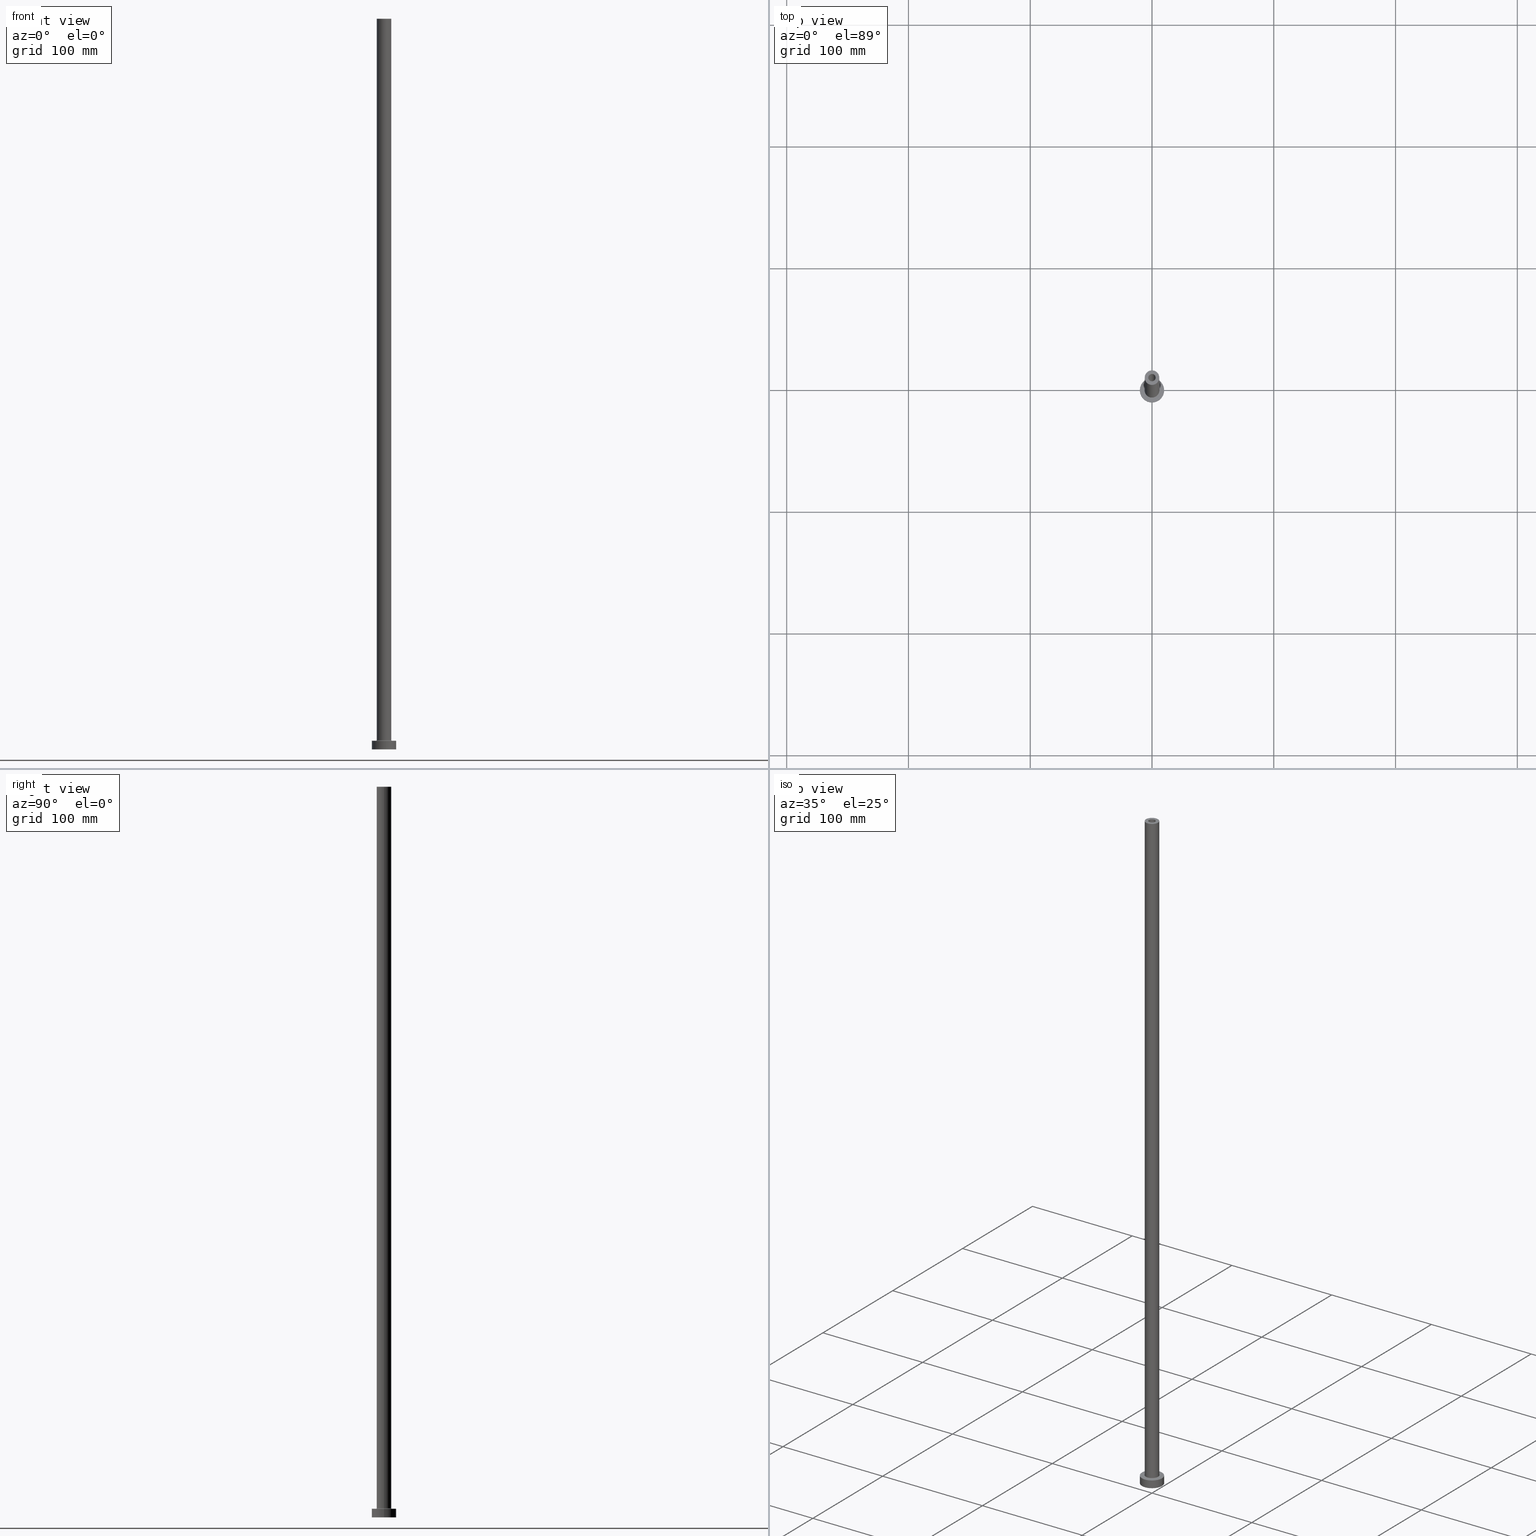
[diagram: canonical four-view strip — front | top / right | iso, engineering-drawing reading convention]
A machine part, canonical four-view strip (front | top / right | iso — engineering-drawing reading convention). The complete STEP part file that produces these views, byte-faithful:
ISO-10303-21;
HEADER;
FILE_DESCRIPTION (( 'STEP AP203' ),
    '1' );
FILE_NAME ('a6e2.STEP',
    '2023-02-13T14:59:31',
    ( '' ),
    ( '' ),
    'SwSTEP 2.0',
    'SolidWorks 2019',
    '' );
FILE_SCHEMA (( 'CONFIG_CONTROL_DESIGN' ));
ENDSEC;

DATA;
#1 = CARTESIAN_POINT ( 'NONE',  ( 0.000000000000000000, 0.000000000000000000, 7.499999999999951150 ) ) ;
#2 = VERTEX_POINT ( 'NONE', #265 ) ;
#3 = FACE_OUTER_BOUND ( 'NONE', #276, .T. ) ;
#4 = ORIENTED_EDGE ( 'NONE', *, *, #170, .F. ) ;
#5 = DIRECTION ( 'NONE',  ( 0.000000000000000000, 0.000000000000000000, -1.000000000000000000 ) ) ;
#6 = AXIS2_PLACEMENT_3D ( 'NONE', #227, #96, #133 ) ;
#7 = EDGE_CURVE ( 'NONE', #225, #189, #175, .T. ) ;
#8 = ORIENTED_EDGE ( 'NONE', *, *, #383, .T. ) ;
#9 = DIRECTION ( 'NONE',  ( -0.000000000000000000, -0.000000000000000000, -1.000000000000000000 ) ) ;
#10 = ORIENTED_EDGE ( 'NONE', *, *, #43, .T. ) ;
#11 = CALENDAR_DATE ( 2023, 13, 2 ) ;
#12 = DIRECTION ( 'NONE',  ( -0.000000000000000000, -0.000000000000000000, -1.000000000000000000 ) ) ;
#13 = DATE_AND_TIME ( #94, #330 ) ;
#14 = ORIENTED_EDGE ( 'NONE', *, *, #305, .T. ) ;
#15 = LOCAL_TIME ( 15, 59, 31.00000000000000000, #198 ) ;
#16 = EDGE_CURVE ( 'NONE', #389, #113, #150, .T. ) ;
#17 = DATE_AND_TIME ( #340, #321 ) ;
#18 = CARTESIAN_POINT ( 'NONE',  ( 0.000000000000000000, 0.000000000000000000, 600.0000000000000000 ) ) ;
#19 = PERSON_AND_ORGANIZATION_ROLE ( 'creator' ) ;
#20 = CARTESIAN_POINT ( 'NONE',  ( 3.000000000000000444, 3.673940397442060361E-16, 600.0000000000000000 ) ) ;
#21 = APPROVAL_ROLE ( '' ) ;
#22 = CARTESIAN_POINT ( 'NONE',  ( 10.00000000000000000, 1.224646799147353256E-15, 7.000000000000000000 ) ) ;
#23 = ADVANCED_FACE ( 'NONE', ( #157 ), #131, .T. ) ;
#24 = TOROIDAL_SURFACE ( 'NONE', #280, 6.500000000000000888, 0.5000000000000000000 ) ;
#25 = AXIS2_PLACEMENT_3D ( 'NONE', #388, #72, #180 ) ;
#26 = CARTESIAN_POINT ( 'NONE',  ( 0.000000000000000000, 0.000000000000000000, 600.0000000000000000 ) ) ;
#27 = CARTESIAN_POINT ( 'NONE',  ( -6.500000000000000888, 7.960204194457796463E-16, 6.999999999999975131 ) ) ;
#28 = APPROVAL ( #83, 'NEUR�EN�' ) ;
#29 = DIRECTION ( 'NONE',  ( 1.000000000000000000, 0.000000000000000000, 0.000000000000000000 ) ) ;
#30 = CIRCLE ( 'NONE', #289, 10.00000000000000000 ) ;
#31 = APPROVAL_PERSON_ORGANIZATION ( #374, #394, #306 ) ;
#32 = CC_DESIGN_APPROVAL ( #407, ( #275 ) ) ;
#33 = FACE_OUTER_BOUND ( 'NONE', #430, .T. ) ;
#34 = PLANE ( 'NONE',  #314 ) ;
#35 = EDGE_CURVE ( 'NONE', #82, #389, #373, .T. ) ;
#36 = CYLINDRICAL_SURFACE ( 'NONE', #358, 10.00000000000000000 ) ;
#37 = AXIS2_PLACEMENT_3D ( 'NONE', #122, #435, #431 ) ;
#38 = CARTESIAN_POINT ( 'NONE',  ( -3.150000000000000355, 0.000000000000000000, 563.9095454429503889 ) ) ;
#39 = AXIS2_PLACEMENT_3D ( 'NONE', #401, #261, #52 ) ;
#40 = EDGE_LOOP ( 'NONE', ( #190, #399 ) ) ;
#41 = PLANE ( 'NONE',  #39 ) ;
#42 = EDGE_LOOP ( 'NONE', ( #14, #145 ) ) ;
#43 = EDGE_CURVE ( 'NONE', #360, #113, #404, .T. ) ;
#44 = CARTESIAN_POINT ( 'NONE',  ( 0.000000000000000000, 0.000000000000000000, 554.9999999999998863 ) ) ;
#45 = ORIENTED_EDGE ( 'NONE', *, *, #301, .T. ) ;
#46 = DIRECTION ( 'NONE',  ( 0.000000000000000000, 0.000000000000000000, 1.000000000000000000 ) ) ;
#47 = VECTOR ( 'NONE', #137, 1000.000000000000000 ) ;
#48 = ORIENTED_EDGE ( 'NONE', *, *, #43, .F. ) ;
#49 = AXIS2_PLACEMENT_3D ( 'NONE', #398, #322, #187 ) ;
#50 = CARTESIAN_POINT ( 'NONE',  ( 0.000000000000000000, 0.000000000000000000, 0.000000000000000000 ) ) ;
#51 = ORIENTED_EDGE ( 'NONE', *, *, #7, .F. ) ;
#52 = DIRECTION ( 'NONE',  ( 1.000000000000000000, 0.000000000000000000, -0.000000000000000000 ) ) ;
#53 = PLANE ( 'NONE',  #231 ) ;
#54 = EDGE_CURVE ( 'NONE', #189, #225, #143, .T. ) ;
#55 = PERSON_AND_ORGANIZATION_ROLE ( 'design_owner' ) ;
#56 = ORIENTED_EDGE ( 'NONE', *, *, #376, .T. ) ;
#57 = AXIS2_PLACEMENT_3D ( 'NONE', #232, #299, #263 ) ;
#58 = CALENDAR_DATE ( 2023, 13, 2 ) ;
#59 = DIRECTION ( 'NONE',  ( 1.000000000000000000, 0.000000000000000000, 0.000000000000000000 ) ) ;
#60 = CC_DESIGN_PERSON_AND_ORGANIZATION_ASSIGNMENT ( #130, #411, ( #290 ) ) ;
#61 = ORIENTED_EDGE ( 'NONE', *, *, #93, .F. ) ;
#62 = DIRECTION ( 'NONE',  ( 1.000000000000000000, 0.000000000000000000, 0.000000000000000000 ) ) ;
#63 = AXIS2_PLACEMENT_3D ( 'NONE', #101, #176, #350 ) ;
#64 = AXIS2_PLACEMENT_3D ( 'NONE', #256, #151, #220 ) ;
#65 = CYLINDRICAL_SURFACE ( 'NONE', #453, 3.000000000000000444 ) ;
#66 = CARTESIAN_POINT ( 'NONE',  ( 0.000000000000000000, 0.000000000000000000, 0.000000000000000000 ) ) ;
#67 = DIRECTION ( 'NONE',  ( -1.000000000000000000, 0.000000000000000000, 0.000000000000000000 ) ) ;
#68 = CIRCLE ( 'NONE', #25, 10.00000000000000000 ) ;
#69 = DIRECTION ( 'NONE',  ( 0.000000000000000000, 0.000000000000000000, -1.000000000000000000 ) ) ;
#70 = CC_DESIGN_DATE_AND_TIME_ASSIGNMENT ( #13, #234, ( #290 ) ) ;
#71 = CARTESIAN_POINT ( 'NONE',  ( 0.000000000000000000, 0.000000000000000000, 600.0000000000000000 ) ) ;
#72 = DIRECTION ( 'NONE',  ( 0.000000000000000000, 0.000000000000000000, 1.000000000000000000 ) ) ;
#73 = ORIENTED_EDGE ( 'NONE', *, *, #7, .T. ) ;
#74 = AXIS2_PLACEMENT_3D ( 'NONE', #457, #241, #209 ) ;
#75 = CARTESIAN_POINT ( 'NONE',  ( -3.150000000000000355, 0.000000000000000000, 0.000000000000000000 ) ) ;
#76 = LOCAL_TIME ( 15, 59, 31.00000000000000000, #124 ) ;
#77 = ORIENTED_EDGE ( 'NONE', *, *, #170, .T. ) ;
#78 = EDGE_CURVE ( 'NONE', #113, #389, #30, .T. ) ;
#79 = DIRECTION ( 'NONE',  ( 0.000000000000000000, 0.000000000000000000, 1.000000000000000000 ) ) ;
#80 = ORIENTED_EDGE ( 'NONE', *, *, #349, .F. ) ;
#81 = LINE ( 'NONE', #38, #224 ) ;
#82 = VERTEX_POINT ( 'NONE', #334 ) ;
#83 = APPROVAL_STATUS ( 'not_yet_approved' ) ;
#84 = CLOSED_SHELL ( 'NONE', ( #193, #188, #217, #112, #272, #87, #102, #97, #23, #461, #233, #115, #136, #105 ) ) ;
#85 = VERTEX_POINT ( 'NONE', #20 ) ;
#86 = DATE_AND_TIME ( #58, #76 ) ;
#87 = ADVANCED_FACE ( 'NONE', ( #375 ), #297, .T. ) ;
#88 = EDGE_LOOP ( 'NONE', ( #362, #295, #92, #4 ) ) ;
#89 = DATE_TIME_ROLE ( 'creation_date' ) ;
#90 = VERTEX_POINT ( 'NONE', #442 ) ;
#91 =( NAMED_UNIT ( * ) PLANE_ANGLE_UNIT ( ) SI_UNIT ( $, .RADIAN. ) );
#92 = ORIENTED_EDGE ( 'NONE', *, *, #428, .F. ) ;
#93 = EDGE_CURVE ( 'NONE', #2, #189, #274, .T. ) ;
#94 = CALENDAR_DATE ( 2023, 13, 2 ) ;
#95 = ORIENTED_EDGE ( 'NONE', *, *, #428, .T. ) ;
#96 = DIRECTION ( 'NONE',  ( 1.224646799147353207E-16, 1.000000000000000000, -0.000000000000000000 ) ) ;
#97 = ADVANCED_FACE ( 'NONE', ( #236, #268 ), #127, .F. ) ;
#98 = DIRECTION ( 'NONE',  ( 0.000000000000000000, 0.000000000000000000, 1.000000000000000000 ) ) ;
#99 = CIRCLE ( 'NONE', #214, 10.00000000000000000 ) ;
#100 = AXIS2_PLACEMENT_3D ( 'NONE', #211, #437, #254 ) ;
#101 = CARTESIAN_POINT ( 'NONE',  ( 6.500000000000000888, 0.000000000000000000, 7.499999999999951150 ) ) ;
#102 = ADVANCED_FACE ( 'NONE', ( #308, #449 ), #53, .T. ) ;
#103 = ORIENTED_EDGE ( 'NONE', *, *, #172, .F. ) ;
#104 = DIRECTION ( 'NONE',  ( 0.000000000000000000, 0.000000000000000000, -1.000000000000000000 ) ) ;
#105 = ADVANCED_FACE ( 'NONE', ( #237 ), #142, .F. ) ;
#106 = DIRECTION ( 'NONE',  ( 1.000000000000000000, 0.000000000000000000, -0.000000000000000000 ) ) ;
#107 = AXIS2_PLACEMENT_3D ( 'NONE', #201, #455, #171 ) ;
#108 = ORGANIZATION ( 'NEUR�EN�', 'NEUR�EN�', '' ) ;
#109 = CARTESIAN_POINT ( 'NONE',  ( 0.000000000000000000, 0.000000000000000000, 563.9095454429503889 ) ) ;
#110 = PRODUCT_DEFINITION_SHAPE ( 'NONE', 'NONE',  #380 ) ;
#111 = DIRECTION ( 'NONE',  ( 1.000000000000000000, 0.000000000000000000, 0.000000000000000000 ) ) ;
#112 = ADVANCED_FACE ( 'NONE', ( #239 ), #348, .T. ) ;
#113 = VERTEX_POINT ( 'NONE', #381 ) ;
#114 = CARTESIAN_POINT ( 'NONE',  ( 6.000000000000000888, 7.347880794884120722E-16, 7.499999999999951150 ) ) ;
#115 = ADVANCED_FACE ( 'NONE', ( #450 ), #277, .F. ) ;
#116 = ORIENTED_EDGE ( 'NONE', *, *, #305, .F. ) ;
#117 = VECTOR ( 'NONE', #104, 1000.000000000000000 ) ;
#118 = CARTESIAN_POINT ( 'NONE',  ( 6.500000000000000888, 0.000000000000000000, 6.999999999999975131 ) ) ;
#119 = ORIENTED_EDGE ( 'NONE', *, *, #172, .T. ) ;
#120 = CARTESIAN_POINT ( 'NONE',  ( 0.000000000000000000, 0.000000000000000000, 554.9999999999998863 ) ) ;
#121 = EDGE_LOOP ( 'NONE', ( #216, #125, #185, #155 ) ) ;
#122 = CARTESIAN_POINT ( 'NONE',  ( 0.000000000000000000, 0.000000000000000000, 7.499999999999951150 ) ) ;
#123 = ORIENTED_EDGE ( 'NONE', *, *, #16, .T. ) ;
#124 = COORDINATED_UNIVERSAL_TIME_OFFSET ( 1, 0, .AHEAD. ) ;
#125 = ORIENTED_EDGE ( 'NONE', *, *, #349, .T. ) ;
#126 = PERSON_AND_ORGANIZATION_ROLE ( 'creator' ) ;
#127 = PLANE ( 'NONE',  #238 ) ;
#128 = VERTEX_POINT ( 'NONE', #313 ) ;
#129 = EDGE_CURVE ( 'NONE', #364, #255, #458, .T. ) ;
#130 = PERSON_AND_ORGANIZATION ( #153, #108 ) ;
#131 = CYLINDRICAL_SURFACE ( 'NONE', #179, 6.000000000000000888 ) ;
#132 = CIRCLE ( 'NONE', #386, 3.000000000000000444 ) ;
#133 = DIRECTION ( 'NONE',  ( -1.000000000000000000, 1.224646799147351482E-16, 0.000000000000000000 ) ) ;
#134 = DIRECTION ( 'NONE',  ( -0.000000000000000000, -0.000000000000000000, -1.000000000000000000 ) ) ;
#135 = CALENDAR_DATE ( 2023, 13, 2 ) ;
#136 = ADVANCED_FACE ( 'NONE', ( #206, #33 ), #34, .F. ) ;
#137 = DIRECTION ( 'NONE',  ( -0.000000000000000000, -0.000000000000000000, -1.000000000000000000 ) ) ;
#138 = AXIS2_PLACEMENT_3D ( 'NONE', #109, #315, #177 ) ;
#139 = DIRECTION ( 'NONE',  ( -1.000000000000000000, 0.000000000000000000, 0.000000000000000000 ) ) ;
#140 = DIRECTION ( 'NONE',  ( 1.000000000000000000, 0.000000000000000000, 0.000000000000000000 ) ) ;
#141 = EDGE_CURVE ( 'NONE', #357, #240, #410, .T. ) ;
#142 = CYLINDRICAL_SURFACE ( 'NONE', #107, 3.000000000000000444 ) ;
#143 = CIRCLE ( 'NONE', #243, 6.500000000000000888 ) ;
#144 = DIRECTION ( 'NONE',  ( 1.000000000000000000, 0.000000000000000000, 0.000000000000000000 ) ) ;
#145 = ORIENTED_EDGE ( 'NONE', *, *, #422, .T. ) ;
#146 = FACE_BOUND ( 'NONE', #332, .T. ) ;
#147 = EDGE_LOOP ( 'NONE', ( #438, #45, #229, #221 ) ) ;
#148 = DIRECTION ( 'NONE',  ( 0.000000000000000000, 0.000000000000000000, 1.000000000000000000 ) ) ;
#149 = VERTEX_POINT ( 'NONE', #203 ) ;
#150 = CIRCLE ( 'NONE', #57, 10.00000000000000000 ) ;
#151 = DIRECTION ( 'NONE',  ( 0.000000000000000000, 0.000000000000000000, 1.000000000000000000 ) ) ;
#152 = ORIENTED_EDGE ( 'NONE', *, *, #245, .F. ) ;
#153 = PERSON ( 'NEUR�EN�', 'NEUR�EN�', 'NEUR�EN�', ('NEUR�EN�'), ('NEUR�EN�'), ('NEUR�EN�') ) ;
#154 = LINE ( 'NONE', #327, #434 ) ;
#155 = ORIENTED_EDGE ( 'NONE', *, *, #141, .T. ) ;
#156 = CC_DESIGN_PERSON_AND_ORGANIZATION_ASSIGNMENT ( #226, #191, ( #275 ) ) ;
#157 = FACE_OUTER_BOUND ( 'NONE', #235, .T. ) ;
#158 = EDGE_CURVE ( 'NONE', #218, #225, #298, .T. ) ;
#159 = VECTOR ( 'NONE', #390, 1000.000000000000000 ) ;
#160 = DIRECTION ( 'NONE',  ( -1.000000000000000000, 0.000000000000000000, 0.000000000000000000 ) ) ;
#161 = PERSON_AND_ORGANIZATION ( #153, #108 ) ;
#162 = EDGE_CURVE ( 'NONE', #149, #85, #258, .T. ) ;
#163 = CARTESIAN_POINT ( 'NONE',  ( 0.000000000000000000, 0.000000000000000000, 7.000000000000000000 ) ) ;
#164 = MECHANICAL_CONTEXT ( 'NONE', #293, 'mechanical' ) ;
#165 = ORIENTED_EDGE ( 'NONE', *, *, #205, .T. ) ;
#166 = APPROVAL_STATUS ( 'not_yet_approved' ) ;
#167 = DIRECTION ( 'NONE',  ( 1.000000000000000000, 0.000000000000000000, -0.000000000000000000 ) ) ;
#168 = AXIS2_PLACEMENT_3D ( 'NONE', #66, #134, #140 ) ;
#169 = LOCAL_TIME ( 15, 59, 31.00000000000000000, #269 ) ;
#170 = EDGE_CURVE ( 'NONE', #149, #128, #416, .T. ) ;
#171 = DIRECTION ( 'NONE',  ( -1.000000000000000000, 0.000000000000000000, 0.000000000000000000 ) ) ;
#172 = EDGE_CURVE ( 'NONE', #85, #149, #338, .T. ) ;
#173 = CARTESIAN_POINT ( 'NONE',  ( 0.000000000000000000, 0.000000000000000000, 600.0000000000000000 ) ) ;
#174 = ORIENTED_EDGE ( 'NONE', *, *, #158, .T. ) ;
#175 = CIRCLE ( 'NONE', #345, 6.500000000000000888 ) ;
#176 = DIRECTION ( 'NONE',  ( 0.000000000000000000, -1.000000000000000000, 0.000000000000000000 ) ) ;
#177 = DIRECTION ( 'NONE',  ( -1.000000000000000000, 0.000000000000000000, 0.000000000000000000 ) ) ;
#178 = CARTESIAN_POINT ( 'NONE',  ( 0.000000000000000000, 0.000000000000000000, 7.000000000000000000 ) ) ;
#179 = AXIS2_PLACEMENT_3D ( 'NONE', #18, #341, #199 ) ;
#180 = DIRECTION ( 'NONE',  ( 1.000000000000000000, 0.000000000000000000, 0.000000000000000000 ) ) ;
#181 = ORIENTED_EDGE ( 'NONE', *, *, #205, .F. ) ;
#182 = DIRECTION ( 'NONE',  ( 0.000000000000000000, 0.000000000000000000, 1.000000000000000000 ) ) ;
#183 = ORIENTED_EDGE ( 'NONE', *, *, #129, .T. ) ;
#184 = CARTESIAN_POINT ( 'NONE',  ( -6.000000000000000888, 0.000000000000000000, 600.0000000000000000 ) ) ;
#185 = ORIENTED_EDGE ( 'NONE', *, *, #397, .T. ) ;
#186 = CIRCLE ( 'NONE', #447, 3.150000000000000355 ) ;
#187 = DIRECTION ( 'NONE',  ( 1.000000000000000000, 0.000000000000000000, 0.000000000000000000 ) ) ;
#188 = ADVANCED_FACE ( 'NONE', ( #379 ), #421, .F. ) ;
#189 = VERTEX_POINT ( 'NONE', #27 ) ;
#190 = ORIENTED_EDGE ( 'NONE', *, *, #141, .F. ) ;
#191 = PERSON_AND_ORGANIZATION_ROLE ( 'design_supplier' ) ;
#192 = EDGE_LOOP ( 'NONE', ( #284, #56, #371, #181 ) ) ;
#193 = ADVANCED_FACE ( 'NONE', ( #242 ), #65, .F. ) ;
#194 = PERSON_AND_ORGANIZATION ( #153, #108 ) ;
#195 = AXIS2_PLACEMENT_3D ( 'NONE', #354, #98, #278 ) ;
#196 = ORIENTED_EDGE ( 'NONE', *, *, #93, .T. ) ;
#197 = EDGE_LOOP ( 'NONE', ( #392, #116, #10, #328 ) ) ;
#198 = COORDINATED_UNIVERSAL_TIME_OFFSET ( 1, 0, .AHEAD. ) ;
#199 = DIRECTION ( 'NONE',  ( -1.000000000000000000, 0.000000000000000000, 0.000000000000000000 ) ) ;
#200 = CARTESIAN_POINT ( 'NONE',  ( 0.000000000000000000, 0.000000000000000000, 0.000000000000000000 ) ) ;
#201 = CARTESIAN_POINT ( 'NONE',  ( 0.000000000000000000, 0.000000000000000000, 600.0000000000000000 ) ) ;
#202 = VERTEX_POINT ( 'NONE', #318 ) ;
#203 = CARTESIAN_POINT ( 'NONE',  ( -3.000000000000000444, 0.000000000000000000, 600.0000000000000000 ) ) ;
#204 = ORIENTED_EDGE ( 'NONE', *, *, #78, .F. ) ;
#205 = EDGE_CURVE ( 'NONE', #364, #2, #451, .T. ) ;
#206 = FACE_BOUND ( 'NONE', #304, .T. ) ;
#207 = AXIS2_PLACEMENT_3D ( 'NONE', #26, #271, #423 ) ;
#208 = APPROVAL_PERSON_ORGANIZATION ( #296, #28, #21 ) ;
#209 = DIRECTION ( 'NONE',  ( -1.000000000000000000, 0.000000000000000000, 0.000000000000000000 ) ) ;
#210 = FACE_OUTER_BOUND ( 'NONE', #312, .T. ) ;
#211 = CARTESIAN_POINT ( 'NONE',  ( 0.000000000000000000, 0.000000000000000000, 554.9999999999998863 ) ) ;
#212 = ORIENTED_EDGE ( 'NONE', *, *, #262, .T. ) ;
#213 = EDGE_CURVE ( 'NONE', #240, #357, #223, .T. ) ;
#214 = AXIS2_PLACEMENT_3D ( 'NONE', #395, #79, #361 ) ;
#215 = DIRECTION ( 'NONE',  ( -0.000000000000000000, -0.000000000000000000, -1.000000000000000000 ) ) ;
#216 = ORIENTED_EDGE ( 'NONE', *, *, #301, .F. ) ;
#217 = ADVANCED_FACE ( 'NONE', ( #273 ), #446, .F. ) ;
#218 = VERTEX_POINT ( 'NONE', #114 ) ;
#219 = CC_DESIGN_PERSON_AND_ORGANIZATION_ASSIGNMENT ( #230, #19, ( #275 ) ) ;
#220 = DIRECTION ( 'NONE',  ( 1.000000000000000000, 0.000000000000000000, 0.000000000000000000 ) ) ;
#221 = ORIENTED_EDGE ( 'NONE', *, *, #397, .F. ) ;
#222 = DESIGN_CONTEXT ( 'detailed design', #317, 'design' ) ;
#223 = CIRCLE ( 'NONE', #251, 3.150000000000000355 ) ;
#224 = VECTOR ( 'NONE', #5, 1000.000000000000000 ) ;
#225 = VERTEX_POINT ( 'NONE', #118 ) ;
#226 = PERSON_AND_ORGANIZATION ( #153, #108 ) ;
#227 = CARTESIAN_POINT ( 'NONE',  ( -6.500000000000000888, 7.960204194457796463E-16, 7.499999999999951150 ) ) ;
#228 = APPROVAL_STATUS ( 'not_yet_approved' ) ;
#229 = ORIENTED_EDGE ( 'NONE', *, *, #213, .T. ) ;
#230 = PERSON_AND_ORGANIZATION ( #153, #108 ) ;
#231 = AXIS2_PLACEMENT_3D ( 'NONE', #406, #246, #106 ) ;
#232 = CARTESIAN_POINT ( 'NONE',  ( 0.000000000000000000, 0.000000000000000000, 0.000000000000000000 ) ) ;
#233 = ADVANCED_FACE ( 'NONE', ( #3 ), #24, .F. ) ;
#234 = DATE_TIME_ROLE ( 'classification_date' ) ;
#235 = EDGE_LOOP ( 'NONE', ( #436, #367, #165, #257 ) ) ;
#236 = FACE_BOUND ( 'NONE', #40, .T. ) ;
#237 = FACE_OUTER_BOUND ( 'NONE', #427, .T. ) ;
#238 = AXIS2_PLACEMENT_3D ( 'NONE', #369, #412, #167 ) ;
#239 = FACE_OUTER_BOUND ( 'NONE', #192, .T. ) ;
#240 = VERTEX_POINT ( 'NONE', #287 ) ;
#241 = DIRECTION ( 'NONE',  ( 0.000000000000000000, 0.000000000000000000, -1.000000000000000000 ) ) ;
#242 = FACE_OUTER_BOUND ( 'NONE', #88, .T. ) ;
#243 = AXIS2_PLACEMENT_3D ( 'NONE', #163, #302, #59 ) ;
#244 = VECTOR ( 'NONE', #363, 1000.000000000000000 ) ;
#245 = EDGE_CURVE ( 'NONE', #2, #218, #320, .T. ) ;
#246 = DIRECTION ( 'NONE',  ( 0.000000000000000000, 0.000000000000000000, 1.000000000000000000 ) ) ;
#247 = CARTESIAN_POINT ( 'NONE',  ( 3.000000000000000444, 3.673940397442060361E-16, 600.0000000000000000 ) ) ;
#248 = ORIENTED_EDGE ( 'NONE', *, *, #413, .F. ) ;
#249 = DIRECTION ( 'NONE',  ( -1.000000000000000000, 0.000000000000000000, 0.000000000000000000 ) ) ;
#250 = ORIENTED_EDGE ( 'NONE', *, *, #383, .F. ) ;
#251 = AXIS2_PLACEMENT_3D ( 'NONE', #200, #347, #29 ) ;
#252 = DIRECTION ( 'NONE',  ( 0.000000000000000000, 0.000000000000000000, 1.000000000000000000 ) ) ;
#253 = EDGE_LOOP ( 'NONE', ( #183, #212 ) ) ;
#254 = DIRECTION ( 'NONE',  ( 1.000000000000000000, 0.000000000000000000, 0.000000000000000000 ) ) ;
#255 = VERTEX_POINT ( 'NONE', #331 ) ;
#256 = CARTESIAN_POINT ( 'NONE',  ( 0.000000000000000000, 0.000000000000000000, 7.499999999999951150 ) ) ;
#257 = ORIENTED_EDGE ( 'NONE', *, *, #245, .T. ) ;
#258 = CIRCLE ( 'NONE', #207, 3.000000000000000444 ) ;
#259 = DIRECTION ( 'NONE',  ( 1.000000000000000000, 0.000000000000000000, 0.000000000000000000 ) ) ;
#260 = ORIENTED_EDGE ( 'NONE', *, *, #422, .F. ) ;
#261 = DIRECTION ( 'NONE',  ( 0.000000000000000000, 0.000000000000000000, 1.000000000000000000 ) ) ;
#262 = EDGE_CURVE ( 'NONE', #255, #364, #372, .T. ) ;
#263 = DIRECTION ( 'NONE',  ( 1.000000000000000000, 0.000000000000000000, 0.000000000000000000 ) ) ;
#264 = APPLICATION_PROTOCOL_DEFINITION ( 'international standard', 'config_control_design', 1994, #317 ) ;
#265 = CARTESIAN_POINT ( 'NONE',  ( -6.000000000000000888, 0.000000000000000000, 7.499999999999951150 ) ) ;
#266 = APPROVAL_DATE_TIME ( #17, #407 ) ;
#267 = CIRCLE ( 'NONE', #64, 6.000000000000000888 ) ;
#268 = FACE_OUTER_BOUND ( 'NONE', #460, .T. ) ;
#269 = COORDINATED_UNIVERSAL_TIME_OFFSET ( 1, 0, .AHEAD. ) ;
#270 = DIRECTION ( 'NONE',  ( -0.000000000000000000, -0.000000000000000000, -1.000000000000000000 ) ) ;
#271 = DIRECTION ( 'NONE',  ( 0.000000000000000000, 0.000000000000000000, 1.000000000000000000 ) ) ;
#272 = ADVANCED_FACE ( 'NONE', ( #210 ), #36, .T. ) ;
#273 = FACE_OUTER_BOUND ( 'NONE', #402, .T. ) ;
#274 = CIRCLE ( 'NONE', #6, 0.5000000000000004441 ) ;
#275 = PRODUCT_DEFINITION_FORMATION_WITH_SPECIFIED_SOURCE ( 'LIBOVOLN�', '', #333, .NOT_KNOWN. ) ;
#276 = EDGE_LOOP ( 'NONE', ( #61, #288, #174, #292 ) ) ;
#277 = CYLINDRICAL_SURFACE ( 'NONE', #74, 3.150000000000000355 ) ;
#278 = DIRECTION ( 'NONE',  ( 1.000000000000000000, 0.000000000000000000, 0.000000000000000000 ) ) ;
#279 = DIRECTION ( 'NONE',  ( 0.000000000000000000, 0.000000000000000000, 1.000000000000000000 ) ) ;
#280 = AXIS2_PLACEMENT_3D ( 'NONE', #355, #148, #283 ) ;
#281 = CC_DESIGN_SECURITY_CLASSIFICATION ( #290, ( #275 ) ) ;
#282 = PRODUCT_RELATED_PRODUCT_CATEGORY ( 'detail', '', ( #333 ) ) ;
#283 = DIRECTION ( 'NONE',  ( 1.000000000000000000, 0.000000000000000000, 0.000000000000000000 ) ) ;
#284 = ORIENTED_EDGE ( 'NONE', *, *, #262, .F. ) ;
#285 = FACE_OUTER_BOUND ( 'NONE', #253, .T. ) ;
#286 = ORIENTED_EDGE ( 'NONE', *, *, #158, .F. ) ;
#287 = CARTESIAN_POINT ( 'NONE',  ( 3.150000000000000355, 3.857637417314163182E-16, 0.000000000000000000 ) ) ;
#288 = ORIENTED_EDGE ( 'NONE', *, *, #400, .F. ) ;
#289 = AXIS2_PLACEMENT_3D ( 'NONE', #377, #343, #62 ) ;
#290 = SECURITY_CLASSIFICATION ( '', '', #303 ) ;
#291 = LINE ( 'NONE', #247, #244 ) ;
#292 = ORIENTED_EDGE ( 'NONE', *, *, #54, .F. ) ;
#293 = APPLICATION_CONTEXT ( 'configuration controlled 3d designs of mechanical parts and assemblies' ) ;
#294 = CARTESIAN_POINT ( 'NONE',  ( 10.00000000000000000, 1.224646799147353256E-15, 0.000000000000000000 ) ) ;
#295 = ORIENTED_EDGE ( 'NONE', *, *, #413, .T. ) ;
#296 = PERSON_AND_ORGANIZATION ( #153, #108 ) ;
#297 = CYLINDRICAL_SURFACE ( 'NONE', #433, 10.00000000000000000 ) ;
#298 = CIRCLE ( 'NONE', #63, 0.5000000000000004441 ) ;
#299 = DIRECTION ( 'NONE',  ( 0.000000000000000000, 0.000000000000000000, 1.000000000000000000 ) ) ;
#300 = APPLICATION_PROTOCOL_DEFINITION ( 'international standard', 'config_control_design', 1994, #293 ) ;
#301 = EDGE_CURVE ( 'NONE', #202, #240, #356, .T. ) ;
#302 = DIRECTION ( 'NONE',  ( -0.000000000000000000, -0.000000000000000000, -1.000000000000000000 ) ) ;
#303 = SECURITY_CLASSIFICATION_LEVEL ( 'unclassified' ) ;
#304 = EDGE_LOOP ( 'NONE', ( #95, #8 ) ) ;
#305 = EDGE_CURVE ( 'NONE', #360, #82, #99, .T. ) ;
#306 = APPROVAL_ROLE ( '' ) ;
#307 = AXIS2_PLACEMENT_3D ( 'NONE', #50, #342, #259 ) ;
#308 = FACE_BOUND ( 'NONE', #396, .T. ) ;
#309 = MANIFOLD_SOLID_BREP ( 'Odebrat vysunut�m4', #84 ) ;
#310 = DIRECTION ( 'NONE',  ( 0.000000000000000000, 0.000000000000000000, 1.000000000000000000 ) ) ;
#311 = CARTESIAN_POINT ( 'NONE',  ( 0.000000000000000000, 0.000000000000000000, 600.0000000000000000 ) ) ;
#312 = EDGE_LOOP ( 'NONE', ( #260, #420, #123, #48 ) ) ;
#313 = CARTESIAN_POINT ( 'NONE',  ( -3.000000000000000444, 0.000000000000000000, 554.9999999999998863 ) ) ;
#314 = AXIS2_PLACEMENT_3D ( 'NONE', #352, #279, #456 ) ;
#315 = DIRECTION ( 'NONE',  ( 0.000000000000000000, 0.000000000000000000, -1.000000000000000000 ) ) ;
#316 = UNCERTAINTY_MEASURE_WITH_UNIT (LENGTH_MEASURE( 1.000000000000000082E-05 ), #444, 'distance_accuracy_value', 'NONE');
#317 = APPLICATION_CONTEXT ( 'configuration controlled 3d designs of mechanical parts and assemblies' ) ;
#318 = CARTESIAN_POINT ( 'NONE',  ( 3.150000000000000355, 3.857637417314163182E-16, 554.9999999999998863 ) ) ;
#319 = CARTESIAN_POINT ( 'NONE',  ( 3.150000000000000355, 3.857637417314163182E-16, 563.9095454429503889 ) ) ;
#320 = CIRCLE ( 'NONE', #37, 6.000000000000000888 ) ;
#321 = LOCAL_TIME ( 15, 59, 31.00000000000000000, #370 ) ;
#322 = DIRECTION ( 'NONE',  ( 0.000000000000000000, 0.000000000000000000, 1.000000000000000000 ) ) ;
#323 = ORIENTED_EDGE ( 'NONE', *, *, #16, .F. ) ;
#324 = CC_DESIGN_PERSON_AND_ORGANIZATION_ASSIGNMENT ( #194, #126, ( #380 ) ) ;
#325 = DIRECTION ( 'NONE',  ( 1.000000000000000000, 0.000000000000000000, 0.000000000000000000 ) ) ;
#326 = ORIENTED_EDGE ( 'NONE', *, *, #162, .F. ) ;
#327 = CARTESIAN_POINT ( 'NONE',  ( 6.000000000000000888, 7.347880794884120722E-16, 600.0000000000000000 ) ) ;
#328 = ORIENTED_EDGE ( 'NONE', *, *, #78, .T. ) ;
#329 = AXIS2_PLACEMENT_3D ( 'NONE', #1, #46, #325 ) ;
#330 = LOCAL_TIME ( 15, 59, 31.00000000000000000, #336 ) ;
#331 = CARTESIAN_POINT ( 'NONE',  ( 6.000000000000000888, 7.347880794884120722E-16, 600.0000000000000000 ) ) ;
#332 = EDGE_LOOP ( 'NONE', ( #326, #103 ) ) ;
#333 = PRODUCT ( 'a6e2', 'a6e2', '', ( #164 ) ) ;
#334 = CARTESIAN_POINT ( 'NONE',  ( 10.00000000000000000, 1.224646799147353256E-15, 7.000000000000000000 ) ) ;
#335 = CC_DESIGN_DATE_AND_TIME_ASSIGNMENT ( #86, #89, ( #380 ) ) ;
#336 = COORDINATED_UNIVERSAL_TIME_OFFSET ( 1, 0, .AHEAD. ) ;
#337 = DIRECTION ( 'NONE',  ( 1.000000000000000000, 0.000000000000000000, 0.000000000000000000 ) ) ;
#338 = CIRCLE ( 'NONE', #195, 3.000000000000000444 ) ;
#339 = APPROVAL_PERSON_ORGANIZATION ( #161, #407, #408 ) ;
#340 = CALENDAR_DATE ( 2023, 13, 2 ) ;
#341 = DIRECTION ( 'NONE',  ( -0.000000000000000000, -0.000000000000000000, -1.000000000000000000 ) ) ;
#342 = DIRECTION ( 'NONE',  ( 0.000000000000000000, 0.000000000000000000, 1.000000000000000000 ) ) ;
#343 = DIRECTION ( 'NONE',  ( 0.000000000000000000, 0.000000000000000000, 1.000000000000000000 ) ) ;
#344 = DIRECTION ( 'NONE',  ( -0.000000000000000000, -0.000000000000000000, -1.000000000000000000 ) ) ;
#345 = AXIS2_PLACEMENT_3D ( 'NONE', #445, #270, #337 ) ;
#346 = CC_DESIGN_APPROVAL ( #394, ( #290 ) ) ;
#347 = DIRECTION ( 'NONE',  ( -0.000000000000000000, -0.000000000000000000, -1.000000000000000000 ) ) ;
#348 = CYLINDRICAL_SURFACE ( 'NONE', #365, 6.000000000000000888 ) ;
#349 = EDGE_CURVE ( 'NONE', #202, #432, #186, .T. ) ;
#350 = DIRECTION ( 'NONE',  ( 0.000000000000000000, 0.000000000000000000, -1.000000000000000000 ) ) ;
#351 = AXIS2_PLACEMENT_3D ( 'NONE', #311, #310, #385 ) ;
#352 = CARTESIAN_POINT ( 'NONE',  ( 0.000000000000000000, 0.000000000000000000, 554.9999999999998863 ) ) ;
#353 = CIRCLE ( 'NONE', #49, 3.000000000000000444 ) ;
#354 = CARTESIAN_POINT ( 'NONE',  ( 0.000000000000000000, 0.000000000000000000, 600.0000000000000000 ) ) ;
#355 = CARTESIAN_POINT ( 'NONE',  ( 0.000000000000000000, 0.000000000000000000, 7.499999999999951150 ) ) ;
#356 = LINE ( 'NONE', #319, #159 ) ;
#357 = VERTEX_POINT ( 'NONE', #75 ) ;
#358 = AXIS2_PLACEMENT_3D ( 'NONE', #178, #9, #249 ) ;
#359 = CARTESIAN_POINT ( 'NONE',  ( -3.150000000000000355, 0.000000000000000000, 554.9999999999998863 ) ) ;
#360 = VERTEX_POINT ( 'NONE', #429 ) ;
#361 = DIRECTION ( 'NONE',  ( 1.000000000000000000, 0.000000000000000000, 0.000000000000000000 ) ) ;
#362 = ORIENTED_EDGE ( 'NONE', *, *, #162, .T. ) ;
#363 = DIRECTION ( 'NONE',  ( 0.000000000000000000, 0.000000000000000000, -1.000000000000000000 ) ) ;
#364 = VERTEX_POINT ( 'NONE', #184 ) ;
#365 = AXIS2_PLACEMENT_3D ( 'NONE', #382, #419, #67 ) ;
#366 = CC_DESIGN_APPROVAL ( #28, ( #380 ) ) ;
#367 = ORIENTED_EDGE ( 'NONE', *, *, #129, .F. ) ;
#368 = DATE_AND_TIME ( #11, #15 ) ;
#369 = CARTESIAN_POINT ( 'NONE',  ( 0.000000000000000000, 0.000000000000000000, 0.000000000000000000 ) ) ;
#370 = COORDINATED_UNIVERSAL_TIME_OFFSET ( 1, 0, .AHEAD. ) ;
#371 = ORIENTED_EDGE ( 'NONE', *, *, #400, .T. ) ;
#372 = CIRCLE ( 'NONE', #384, 6.000000000000000888 ) ;
#373 = LINE ( 'NONE', #22, #403 ) ;
#374 = PERSON_AND_ORGANIZATION ( #153, #108 ) ;
#375 = FACE_OUTER_BOUND ( 'NONE', #197, .T. ) ;
#376 = EDGE_CURVE ( 'NONE', #255, #218, #154, .T. ) ;
#377 = CARTESIAN_POINT ( 'NONE',  ( 0.000000000000000000, 0.000000000000000000, 0.000000000000000000 ) ) ;
#378 = APPROVAL_DATE_TIME ( #417, #394 ) ;
#379 = FACE_OUTER_BOUND ( 'NONE', #147, .T. ) ;
#380 = PRODUCT_DEFINITION ( 'NEZN�M�', '', #275, #222 ) ;
#381 = CARTESIAN_POINT ( 'NONE',  ( -10.00000000000000000, 0.000000000000000000, 0.000000000000000000 ) ) ;
#382 = CARTESIAN_POINT ( 'NONE',  ( 0.000000000000000000, 0.000000000000000000, 600.0000000000000000 ) ) ;
#383 = EDGE_CURVE ( 'NONE', #90, #128, #132, .T. ) ;
#384 = AXIS2_PLACEMENT_3D ( 'NONE', #71, #252, #426 ) ;
#385 = DIRECTION ( 'NONE',  ( 1.000000000000000000, 0.000000000000000000, 0.000000000000000000 ) ) ;
#386 = AXIS2_PLACEMENT_3D ( 'NONE', #120, #182, #144 ) ;
#387 = CARTESIAN_POINT ( 'NONE',  ( -6.000000000000000888, 0.000000000000000000, 600.0000000000000000 ) ) ;
#388 = CARTESIAN_POINT ( 'NONE',  ( 0.000000000000000000, 0.000000000000000000, 7.000000000000000000 ) ) ;
#389 = VERTEX_POINT ( 'NONE', #294 ) ;
#390 = DIRECTION ( 'NONE',  ( 0.000000000000000000, 0.000000000000000000, -1.000000000000000000 ) ) ;
#391 = ADVANCED_BREP_SHAPE_REPRESENTATION ( 'a6e2', ( #309, #307 ), #418 ) ;
#392 = ORIENTED_EDGE ( 'NONE', *, *, #35, .F. ) ;
#393 = VECTOR ( 'NONE', #12, 1000.000000000000000 ) ;
#394 = APPROVAL ( #166, 'NEUR�EN�' ) ;
#395 = CARTESIAN_POINT ( 'NONE',  ( 0.000000000000000000, 0.000000000000000000, 7.000000000000000000 ) ) ;
#396 = EDGE_LOOP ( 'NONE', ( #73, #452 ) ) ;
#397 = EDGE_CURVE ( 'NONE', #432, #357, #81, .T. ) ;
#398 = CARTESIAN_POINT ( 'NONE',  ( 0.000000000000000000, 0.000000000000000000, 554.9999999999998863 ) ) ;
#399 = ORIENTED_EDGE ( 'NONE', *, *, #213, .F. ) ;
#400 = EDGE_CURVE ( 'NONE', #218, #2, #267, .T. ) ;
#401 = CARTESIAN_POINT ( 'NONE',  ( 0.000000000000000000, 0.000000000000000000, 600.0000000000000000 ) ) ;
#402 = EDGE_LOOP ( 'NONE', ( #152, #196, #51, #286 ) ) ;
#403 = VECTOR ( 'NONE', #409, 1000.000000000000000 ) ;
#404 = LINE ( 'NONE', #414, #393 ) ;
#405 = PERSON_AND_ORGANIZATION ( #153, #108 ) ;
#406 = CARTESIAN_POINT ( 'NONE',  ( 0.000000000000000000, 0.000000000000000000, 7.000000000000000000 ) ) ;
#407 = APPROVAL ( #228, 'NEUR�EN�' ) ;
#408 = APPROVAL_ROLE ( '' ) ;
#409 = DIRECTION ( 'NONE',  ( -0.000000000000000000, -0.000000000000000000, -1.000000000000000000 ) ) ;
#410 = CIRCLE ( 'NONE', #168, 3.150000000000000355 ) ;
#411 = PERSON_AND_ORGANIZATION_ROLE ( 'classification_officer' ) ;
#412 = DIRECTION ( 'NONE',  ( 0.000000000000000000, 0.000000000000000000, 1.000000000000000000 ) ) ;
#413 = EDGE_CURVE ( 'NONE', #85, #90, #291, .T. ) ;
#414 = CARTESIAN_POINT ( 'NONE',  ( -10.00000000000000000, 0.000000000000000000, 7.000000000000000000 ) ) ;
#415 = CC_DESIGN_PERSON_AND_ORGANIZATION_ASSIGNMENT ( #405, #55, ( #333 ) ) ;
#416 = LINE ( 'NONE', #424, #117 ) ;
#417 = DATE_AND_TIME ( #135, #169 ) ;
#418 =( GEOMETRIC_REPRESENTATION_CONTEXT ( 3 ) GLOBAL_UNCERTAINTY_ASSIGNED_CONTEXT ( ( #316 ) ) GLOBAL_UNIT_ASSIGNED_CONTEXT ( ( #444, #91, #448 ) ) REPRESENTATION_CONTEXT ( 'NONE', 'WORKASPACE' ) );
#419 = DIRECTION ( 'NONE',  ( -0.000000000000000000, -0.000000000000000000, -1.000000000000000000 ) ) ;
#420 = ORIENTED_EDGE ( 'NONE', *, *, #35, .T. ) ;
#421 = CYLINDRICAL_SURFACE ( 'NONE', #138, 3.150000000000000355 ) ;
#422 = EDGE_CURVE ( 'NONE', #82, #360, #68, .T. ) ;
#423 = DIRECTION ( 'NONE',  ( 1.000000000000000000, 0.000000000000000000, 0.000000000000000000 ) ) ;
#424 = CARTESIAN_POINT ( 'NONE',  ( -3.000000000000000444, 0.000000000000000000, 600.0000000000000000 ) ) ;
#425 = EDGE_CURVE ( 'NONE', #432, #202, #441, .T. ) ;
#426 = DIRECTION ( 'NONE',  ( 1.000000000000000000, 0.000000000000000000, 0.000000000000000000 ) ) ;
#427 = EDGE_LOOP ( 'NONE', ( #248, #119, #77, #250 ) ) ;
#428 = EDGE_CURVE ( 'NONE', #128, #90, #353, .T. ) ;
#429 = CARTESIAN_POINT ( 'NONE',  ( -10.00000000000000000, 0.000000000000000000, 7.000000000000000000 ) ) ;
#430 = EDGE_LOOP ( 'NONE', ( #443, #80 ) ) ;
#431 = DIRECTION ( 'NONE',  ( 1.000000000000000000, 0.000000000000000000, 0.000000000000000000 ) ) ;
#432 = VERTEX_POINT ( 'NONE', #359 ) ;
#433 = AXIS2_PLACEMENT_3D ( 'NONE', #440, #344, #160 ) ;
#434 = VECTOR ( 'NONE', #215, 1000.000000000000000 ) ;
#435 = DIRECTION ( 'NONE',  ( 0.000000000000000000, 0.000000000000000000, 1.000000000000000000 ) ) ;
#436 = ORIENTED_EDGE ( 'NONE', *, *, #376, .F. ) ;
#437 = DIRECTION ( 'NONE',  ( 0.000000000000000000, 0.000000000000000000, 1.000000000000000000 ) ) ;
#438 = ORIENTED_EDGE ( 'NONE', *, *, #425, .T. ) ;
#439 = APPROVAL_DATE_TIME ( #368, #28 ) ;
#440 = CARTESIAN_POINT ( 'NONE',  ( 0.000000000000000000, 0.000000000000000000, 7.000000000000000000 ) ) ;
#441 = CIRCLE ( 'NONE', #100, 3.150000000000000355 ) ;
#442 = CARTESIAN_POINT ( 'NONE',  ( 3.000000000000000444, 3.673940397442060361E-16, 554.9999999999998863 ) ) ;
#443 = ORIENTED_EDGE ( 'NONE', *, *, #425, .F. ) ;
#444 =( LENGTH_UNIT ( ) NAMED_UNIT ( * ) SI_UNIT ( .MILLI., .METRE. ) );
#445 = CARTESIAN_POINT ( 'NONE',  ( 0.000000000000000000, 0.000000000000000000, 7.000000000000000000 ) ) ;
#446 = TOROIDAL_SURFACE ( 'NONE', #329, 6.500000000000000888, 0.5000000000000000000 ) ;
#447 = AXIS2_PLACEMENT_3D ( 'NONE', #44, #459, #111 ) ;
#448 =( NAMED_UNIT ( * ) SI_UNIT ( $, .STERADIAN. ) SOLID_ANGLE_UNIT ( ) );
#449 = FACE_OUTER_BOUND ( 'NONE', #42, .T. ) ;
#450 = FACE_OUTER_BOUND ( 'NONE', #121, .T. ) ;
#451 = LINE ( 'NONE', #387, #47 ) ;
#452 = ORIENTED_EDGE ( 'NONE', *, *, #54, .T. ) ;
#453 = AXIS2_PLACEMENT_3D ( 'NONE', #173, #69, #139 ) ;
#454 = SHAPE_DEFINITION_REPRESENTATION ( #110, #391 ) ;
#455 = DIRECTION ( 'NONE',  ( 0.000000000000000000, 0.000000000000000000, -1.000000000000000000 ) ) ;
#456 = DIRECTION ( 'NONE',  ( 1.000000000000000000, 0.000000000000000000, -0.000000000000000000 ) ) ;
#457 = CARTESIAN_POINT ( 'NONE',  ( 0.000000000000000000, 0.000000000000000000, 563.9095454429503889 ) ) ;
#458 = CIRCLE ( 'NONE', #351, 6.000000000000000888 ) ;
#459 = DIRECTION ( 'NONE',  ( 0.000000000000000000, 0.000000000000000000, 1.000000000000000000 ) ) ;
#460 = EDGE_LOOP ( 'NONE', ( #204, #323 ) ) ;
#461 = ADVANCED_FACE ( 'NONE', ( #146, #285 ), #41, .T. ) ;
ENDSEC;
END-ISO-10303-21;
